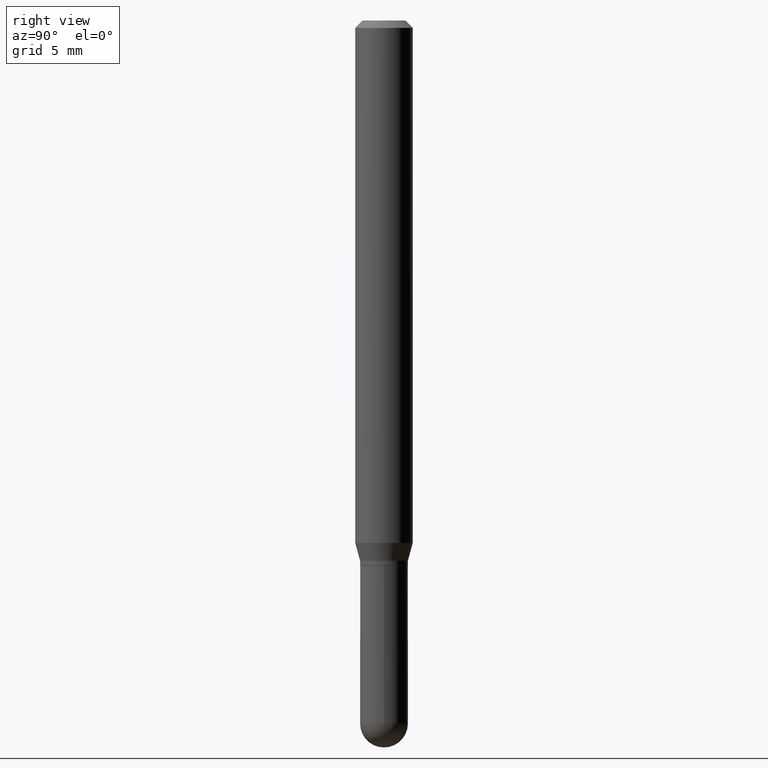
[diagram: clean part render]
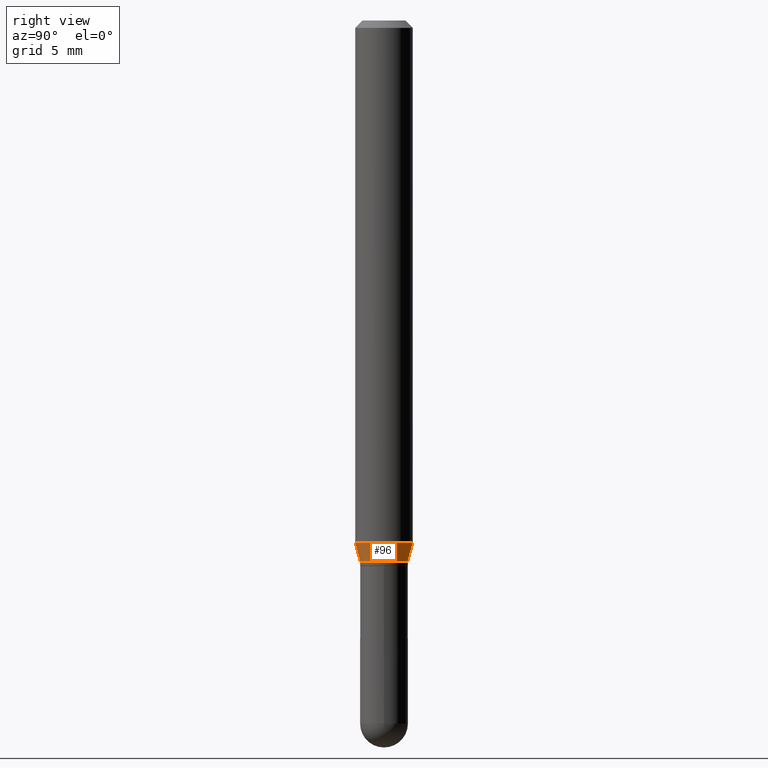
[diagram: same view with one face highlighted and labeled with its STEP entity id]
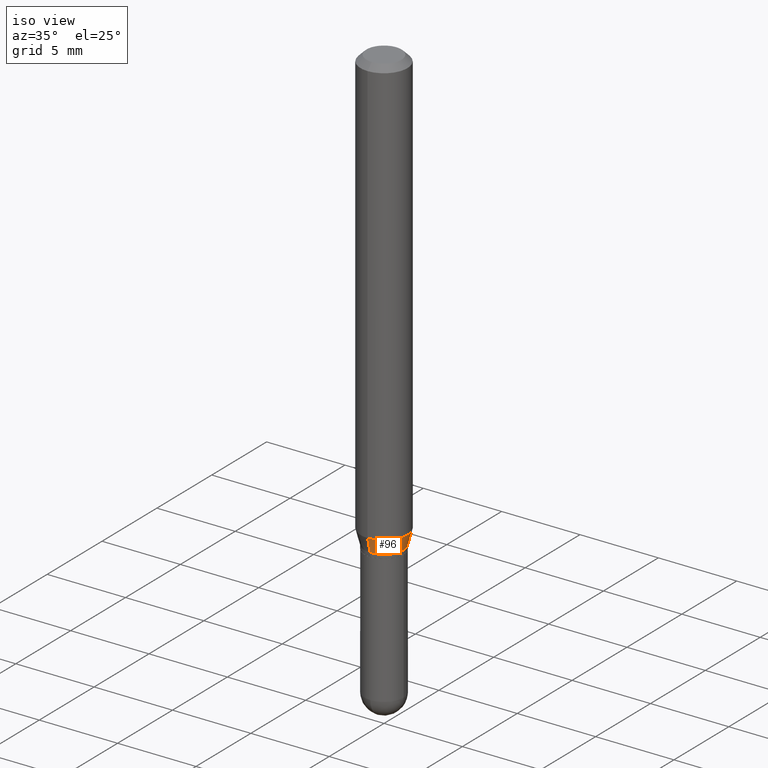
[diagram: same view with one face highlighted and labeled with its STEP entity id]
A machine part, right view. The second image highlights one B-rep face of the part: STEP entity #96.
A second angle (iso view) of the same face is appended — the face is thin or edge-on in the first view.
In plain terms, the highlighted conical surface has half-angle 15 deg.
Its self-contained STEP definition (entity closure, byte-faithful):
#17 = VECTOR ( 'NONE', #59, 39.37007874015748143 ) ;
#28 = VERTEX_POINT ( 'NONE', #111 ) ;
#32 = DIRECTION ( 'NONE',  ( -1.807323732225326984E-15, -0.2588190451025177419, 0.9659258262890690894 ) ) ;
#34 = CONICAL_SURFACE ( 'NONE', #85, 0.04920000000000020191, 0.2617993877991497964 ) ;
#35 = CARTESIAN_POINT ( 'NONE',  ( 4.195754854663652789E-16, 0.05904999999999623744, -1.075339299545447380 ) ) ;
#48 = AXIS2_PLACEMENT_3D ( 'NONE', #132, #293, #355 ) ;
#56 = CARTESIAN_POINT ( 'NONE',  ( -4.123439461173478031E-16, -0.05905000000000376614, -1.075339299545447158 ) ) ;
#59 = DIRECTION ( 'NONE',  ( 1.839019923739597160E-15, 0.2588190451025245142, 0.9659258262890673130 ) ) ;
#80 = EDGE_CURVE ( 'NONE', #28, #371, #142, .T. ) ;
#85 = AXIS2_PLACEMENT_3D ( 'NONE', #185, #467, #266 ) ;
#96 = ADVANCED_FACE ( 'NONE', ( #97 ), #34, .T. ) ;
#97 = FACE_OUTER_BOUND ( 'NONE', #103, .T. ) ;
#103 = EDGE_LOOP ( 'NONE', ( #385, #279, #179, #235 ) ) ;
#111 = CARTESIAN_POINT ( 'NONE',  ( -3.435617637421385410E-16, -0.04920000000000408769, -1.112099999999999644 ) ) ;
#124 = EDGE_CURVE ( 'NONE', #28, #133, #153, .T. ) ;
#132 = CARTESIAN_POINT ( 'NONE',  ( 2.718982904352079591E-29, -3.883768503953039456E-15, -1.112099999999999866 ) ) ;
#133 = VERTEX_POINT ( 'NONE', #414 ) ;
#142 = LINE ( 'NONE', #460, #219 ) ;
#152 = DIRECTION ( 'NONE',  ( -2.444908645222623477E-29, 3.492283521223846478E-15, 1.000000000000000000 ) ) ;
#153 = CIRCLE ( 'NONE', #48, 0.04920000000000020191 ) ;
#156 = EDGE_CURVE ( 'NONE', #133, #427, #457, .T. ) ;
#165 = CARTESIAN_POINT ( 'NONE',  ( 3.495870259939978432E-16, 0.04919999999999632306, -1.112100000000000088 ) ) ;
#179 = ORIENTED_EDGE ( 'NONE', *, *, #478, .F. ) ;
#185 = CARTESIAN_POINT ( 'NONE',  ( 2.718982904352079591E-29, -3.883768503953039456E-15, -1.112099999999999866 ) ) ;
#190 = CARTESIAN_POINT ( 'NONE',  ( 2.629106350006304297E-29, -3.755389715526958811E-15, -1.075339299545447158 ) ) ;
#219 = VECTOR ( 'NONE', #32, 39.37007874015748143 ) ;
#235 = ORIENTED_EDGE ( 'NONE', *, *, #80, .F. ) ;
#266 = DIRECTION ( 'NONE',  ( -6.982962677686265922E-15, -1.000000000000000000, 2.776268286244158643E-15 ) ) ;
#279 = ORIENTED_EDGE ( 'NONE', *, *, #156, .T. ) ;
#293 = DIRECTION ( 'NONE',  ( -2.444908645222623477E-29, 3.492283521223846478E-15, 1.000000000000000000 ) ) ;
#321 = DIRECTION ( 'NONE',  ( -6.982962677686265922E-15, -1.000000000000000000, 4.626330217890369336E-15 ) ) ;
#355 = DIRECTION ( 'NONE',  ( -6.982962677686265922E-15, -1.000000000000000000, 2.776268286244158643E-15 ) ) ;
#358 = AXIS2_PLACEMENT_3D ( 'NONE', #190, #152, #321 ) ;
#371 = VERTEX_POINT ( 'NONE', #56 ) ;
#385 = ORIENTED_EDGE ( 'NONE', *, *, #124, .T. ) ;
#414 = CARTESIAN_POINT ( 'NONE',  ( 3.845812557301816843E-16, 0.04919999999999632306, -1.112100000000000088 ) ) ;
#427 = VERTEX_POINT ( 'NONE', #35 ) ;
#450 = CIRCLE ( 'NONE', #358, 0.05904999999999999832 ) ;
#457 = LINE ( 'NONE', #165, #17 ) ;
#460 = CARTESIAN_POINT ( 'NONE',  ( -3.435617637421385410E-16, -0.04920000000000408769, -1.112099999999999644 ) ) ;
#467 = DIRECTION ( 'NONE',  ( -2.444908645222623477E-29, 3.492283521223846478E-15, 1.000000000000000000 ) ) ;
#478 = EDGE_CURVE ( 'NONE', #371, #427, #450, .T. ) ;